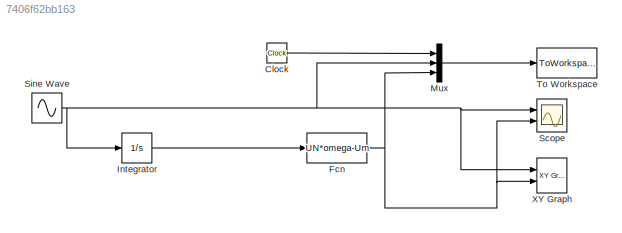
MODEL slx_7406f62bb163
KIND model
BLOCK [Clock] Clock
BLOCK [Fcn] Fcn
  Expr = UN*omega-Um
BLOCK [Integrator] Integrator
  Ports = [1, 1]
BLOCK [Mux] Mux
  DisplayOption = bar
  Inputs = 3
  Ports = [3, 1]
BLOCK [Scope] Scope
  DataFormat = StructureWithTime
  Floating = off
  NumInputPorts = 2
  Ports = [2]
  SampleTime = 0
  ShowLegends = off
  YMax = 5~5
  YMin = -5~-5
BLOCK [Sin] Sine Wave
  Amplitude = 230*2^0.5
  Frequency = 2*pi*50
  Ports = [0, 1]
  SampleTime = 0
BLOCK [ToWorkspace] To Workspace
  FixptAsFi = on
  MaxDataPoints = inf
  Ports = [1]
  SampleTime = -1
  Save2DSignal = 3-D array (concatenate along third dimension)
  VariableName = ws
BLOCK [Reference] XY Graph  REF=simulink/Sinks/XY Graph
  Ports = [2]
  SourceBlock = simulink/Sinks/XY Graph
  SourceType = XY scope.
  st = -1
  xmax = 500
  xmin = -500
  ymax = 500
  ymin = -500
LINE Clock:1 -> Mux:1
NET Fcn:1 -> Mux:3, Scope:2, XY Graph:2
LINE Integrator:1 -> Fcn:1
LINE Mux:1 -> To Workspace:1
NET Sine Wave:1 -> Integrator:1, Mux:2, Scope:1, XY Graph:1
note: NET lines group one-source signal fan-out (src -> all destinations, sorted); 1:1 wires keep LINE
